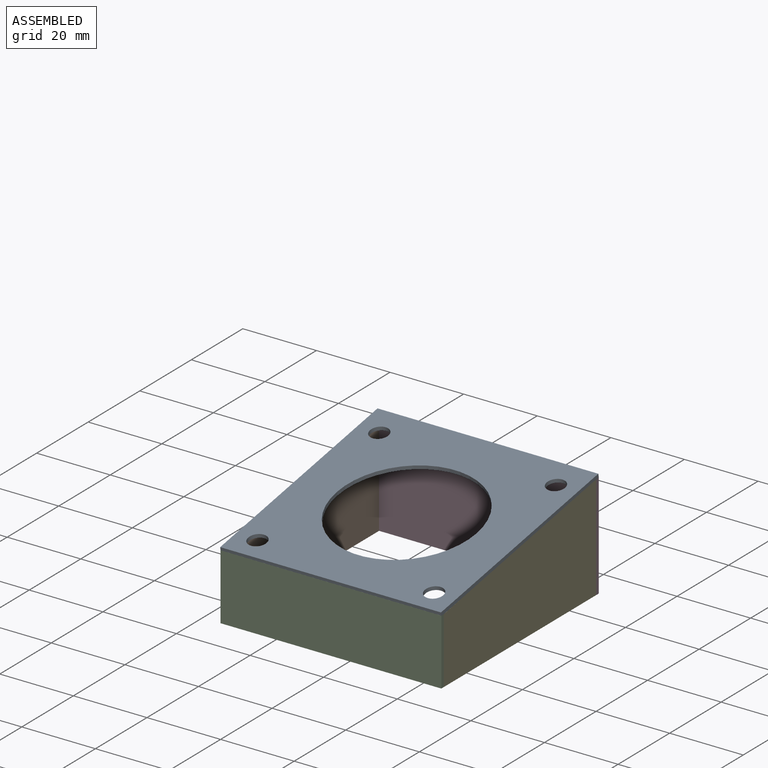
[diagram: assembled view]
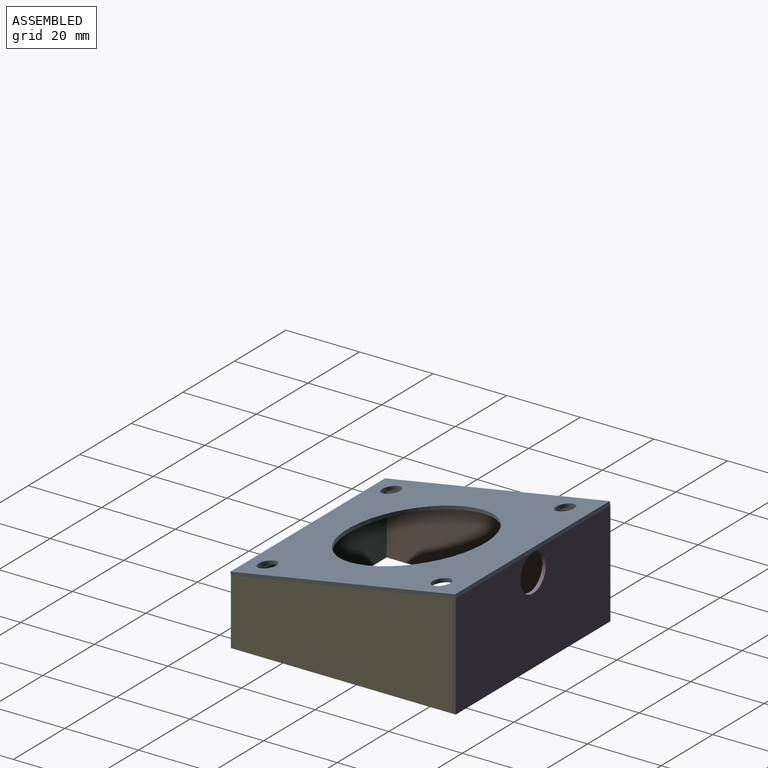
[diagram: assembled view, second angle]
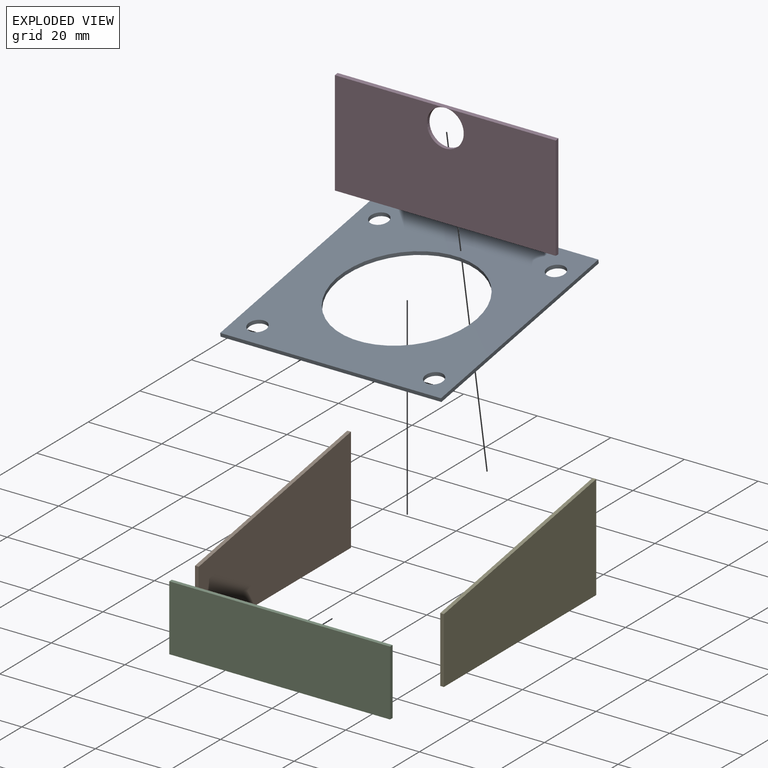
[diagram: exploded view]
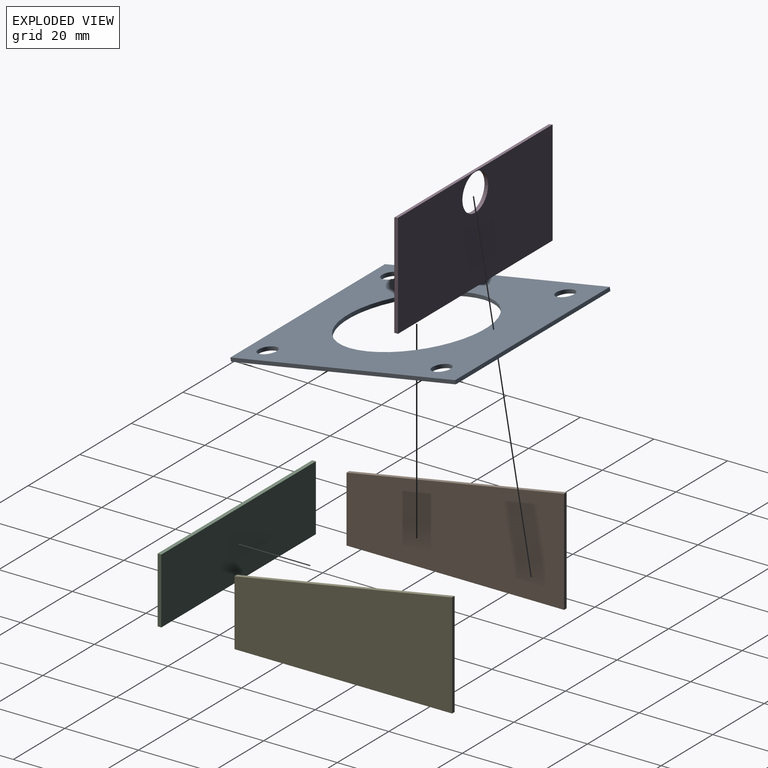
[diagram: exploded view, second angle]
ASSEMBLY  parts=5 mates=4
PART A: 11 faces, bbox 60x62x1 mm
  f0: plane 62x1mm, normal (-1,0,0), area 62mm2, adj f1,f3,f4,f5
  f1: plane 60x1mm, normal (0,-1,0), area 60mm2, adj f0,f2,f4,f5
  f2: plane 62x1mm, normal (1,0,0), area 62mm2, adj f1,f3,f4,f5
  f3: plane 60x1mm, normal (0,1,0), area 60mm2, adj f0,f2,f4,f5
  f4: plane 62x60mm, normal (0,0,1), area 2507.3mm2, adj f0,f1,f2,f3,f6,f7,f8,f9
  f5: plane 62x60mm, normal (0,0,-1), area 2507.3mm2, adj f0,f1,f2,f3,f6,f7,f8,f9
  f6: cylinder r=2.5mm len=5mm, axis (0,0,1), area 15.7mm2, adj f4,f5
  f7: cylinder r=2.5mm len=5mm, axis (0,0,1), area 15.7mm2, adj f4,f5
  f8: cylinder r=2.5mm len=5mm, axis (0,0,1), area 15.7mm2, adj f4,f5
  f9: cylinder r=2.5mm len=5mm, axis (0,0,1), area 15.7mm2, adj f4,f5
  f10: cylinder r=19mm len=38mm, axis (0,0,1), area 119.4mm2, adj f4,f5
PART B: 6 faces, bbox 1x59.1x28.5 mm
  f0: plane 59.1x10.6mm, normal (0,-0.18,0.98), area 60mm2, adj f1,f3,f4,f5
  f1: plane 17.9x1mm, normal (0,-1,0), area 17.9mm2, adj f0,f2,f4,f5
  f2: plane 59.1x1mm, normal (0,0,-1), area 59.1mm2, adj f1,f3,f4,f5
  f3: plane 28.5x1mm, normal (0,1,0), area 28.5mm2, adj f0,f2,f4,f5
  f4: plane 59.1x28.5mm, normal (1,0,0), area 1371.1mm2, adj f0,f1,f2,f3
  f5: plane 59.1x28.5mm, normal (-1,0,0), area 1371.1mm2, adj f0,f1,f2,f3
PART C: 6 faces, bbox 60x1x17.9 mm
  f0: plane 17.9x1mm, normal (-1,0,0), area 17.9mm2, adj f1,f3,f4,f5
  f1: plane 60x1mm, normal (0,0,-1), area 60mm2, adj f0,f2,f4,f5
  f2: plane 17.9x1mm, normal (1,0,0), area 17.9mm2, adj f1,f3,f4,f5
  f3: plane 60x1mm, normal (0,0,1), area 60mm2, adj f0,f2,f4,f5
  f4: plane 60x17.9mm, normal (0,-1,0), area 1074mm2, adj f0,f1,f2,f3
  f5: plane 60x17.9mm, normal (0,1,0), area 1074mm2, adj f0,f1,f2,f3
PART D: 7 faces, bbox 60x1x28.5 mm
  f0: plane 28.5x1mm, normal (-1,0,0), area 28.4mm2, adj f1,f3,f4,f5
  f1: plane 60x1mm, normal (0,0,-1), area 60mm2, adj f0,f2,f3,f4
  f2: plane 28.5x1mm, normal (1,0,0), area 28.4mm2, adj f1,f3,f4,f5
  f3: plane 60x28.32mm, normal (0,-1,0), area 1620.9mm2, adj f0,f1,f2,f5,f6
  f4: plane 60x28.5mm, normal (0,1,0), area 1631.5mm2, adj f0,f1,f2,f5,f6
  f5: plane 60x1mm, normal (0,-0.17,0.98), area 60.9mm2, adj f0,f2,f3,f4
  f6: cylinder r=5mm len=10mm, axis (0,-1,0), area 31.4mm2, adj f3,f4
PART E: same geometry as B
PLACE A rot(axis=(1,0,0),10deg) t=(6.58,7.75,40.09)mm
PLACE B t=(6.58,37.06,40.23)mm
PLACE C t=(6.58,8.71,22.33)mm
PLACE D t=(6.58,68.81,22.33)mm
PLACE E t=(65.58,37.06,40.23)mm
MATE fastened C.f5 <-> B.f1  axis (0,1,0) through (6.58,8.71,22.33)mm
MATE fastened D.f3 <-> B.f3  axis (0,-1,0) through (6.58,67.81,22.33)mm
MATE fastened E.f3 <-> D.f3  axis (0,1,0) through (66.58,67.81,22.33)mm
MATE fastened A.f5 <-> D.f5  axis (0,0.17,-0.98) through (6.58,68.81,50.83)mm
